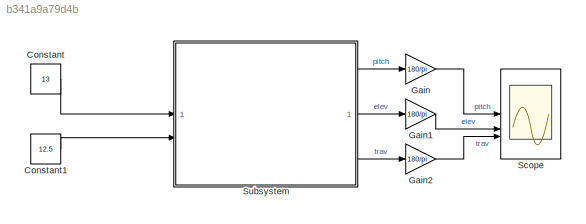
MODEL slx_b341a9a79d4b
KIND model
CONFIG AbsTol = auto
CONFIG EnableMultiTasking = off
CONFIG FixedStep = auto
CONFIG MaxStep = auto
CONFIG MinStep = auto
CONFIG RelTol = 1e-3
CONFIG SampleTimeConstraint = Unconstrained
CONFIG SolverName = VariableStepAuto
CONFIG StartTime = 0.0
CONFIG StopTime = 20
BLOCK [Constant] Constant
  Value = 13
BLOCK [Constant] Constant1
  Value = 12.5
BLOCK [Gain] Gain
  Gain = 180/pi
BLOCK [Gain] Gain1
  Gain = 180/pi
BLOCK [Gain] Gain2
  Gain = 180/pi
BLOCK [Scope] Scope
  Floating = off
  NumInputPorts = 3
  ScopeSpecificationString = Simulink.scopes.TimeScopeBlockCfg('CurrentConfiguration', extmgr.ConfigurationSet(extmgr.Configuration('Core','General UI',true),extmgr.Configuration('Core','Source UI',true),extmgr.Configuration('Sources','WiredSimulink',true),extmgr.Configuration('Visuals','Time Domain',true,'SerializedDisplays',{struct('MinYLimReal','-205.23262','MaxYLimReal','47.09357','YLabelReal','','MinYLimMag',' 0.00000','...<+1515ch>
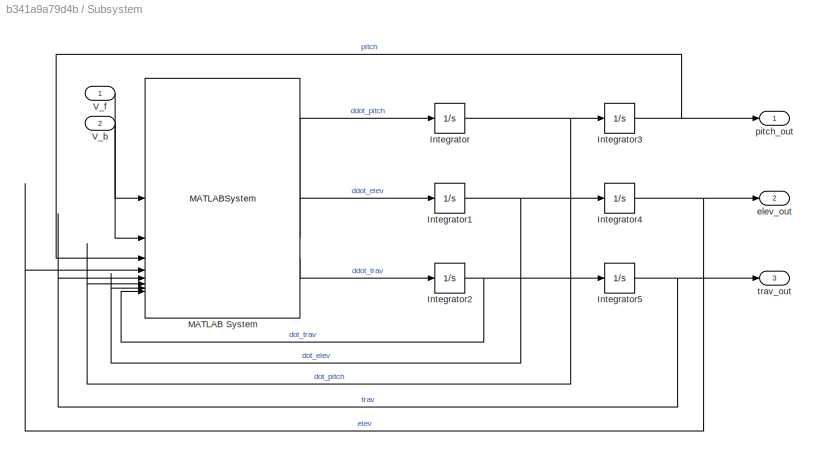
BLOCK [SubSystem] Subsystem
BLOCK [Integrator] Subsystem/Integrator
  InitialCondition = dot_pitch_0
BLOCK [Integrator] Subsystem/Integrator1
  InitialCondition = dot_elev_0
BLOCK [Integrator] Subsystem/Integrator2
  InitialCondition = dot_trav_0
BLOCK [Integrator] Subsystem/Integrator3
  InitialCondition = pitch_0
  LimitOutput = on
  LowerSaturationLimit = pitch_min
  UpperSaturationLimit = pitch_max
BLOCK [Integrator] Subsystem/Integrator4
  InitialCondition = elev_0
  LimitOutput = on
  LowerSaturationLimit = elev_min
  UpperSaturationLimit = elev_max
BLOCK [Integrator] Subsystem/Integrator5
  InitialCondition = trav_0
  LimitOutput = on
  LowerSaturationLimit = trav_min
  UpperSaturationLimit = trav_max
BLOCK [MATLABSystem] Subsystem/MATLAB System
  F_b = [ 0; 0; -1 ]
  F_f = [ 0; 0; -1 ]
  L_a = 25.75 * 0.0254
  L_h = 6.985 * 0.0254
  L_w = 18.125 * 0.0254
  MaskDisplay = disp('HeliSystem');\nport_label('input',1,'V_f');\nport_label('input',2,'V_b');\nport_label('input',3,'pitch');\nport_label('input',4,'elev');\nport_label('input',5,'trav');\nport_label('input',6,'dot_pitch');\nport_label('input',7,'dot_elev');\nport_label('input',8,'dot_trav');\nport_label('output',1,'ddot_pitch');\nport_label('output',2,'ddot_elev');\nport_label('output',3,'ddot_trav');
  MaskType = HeliSystem
  SimulateUsing = Code generation
  System = HeliSystem
  T_b = [ 0; 0; -1 ]
  T_coeff_elev = 0.1
  T_coeff_pitch = 0.1
  T_coeff_trav = 0.1
  T_f = [ 0; 0; 1 ]
  T_stat_elev = 0.001
  T_stat_pitch = 0.001
  T_stat_trav = 0.005
  V_max = 30
  a_thrust = 0.0053
  a_torque = 0.0003
  ax_elev = [ 0; 1; 0 ]
  ax_pitch = [ 1; 0; 0 ]
  ax_trav = [ 0; 0; 1 ]
  b_1 = 0.20
  b_2 = 0.238
  b_3 = 25.75 * 0.0254
  b_4 = 0.0513
  b_thrust = 0.0022
  b_torque = 0.0004
  g = 9.81
  m_b = 0.721
  m_f = 0.721
  m_w = 1.914
BLOCK [Inport] Subsystem/V_b
  Port = 2
BLOCK [Inport] Subsystem/V_f
BLOCK [Outport] Subsystem/elev_out
  Port = 2
BLOCK [Outport] Subsystem/pitch_out
BLOCK [Outport] Subsystem/trav_out
  Port = 3
LINE Constant1:1 -> Subsystem:2
LINE Constant:1 -> Subsystem:1
LINE Gain1:1 -> Scope:2
LINE Gain2:1 -> Scope:3
LINE Gain:1 -> Scope:1
NET Subsystem/Integrator1:1 -> Subsystem/Integrator4:1, Subsystem/MATLAB System:7
NET Subsystem/Integrator2:1 -> Subsystem/Integrator5:1, Subsystem/MATLAB System:8
NET Subsystem/Integrator3:1 -> Subsystem/MATLAB System:3, Subsystem/pitch_out:1
NET Subsystem/Integrator4:1 -> Subsystem/MATLAB System:4, Subsystem/elev_out:1
NET Subsystem/Integrator5:1 -> Subsystem/MATLAB System:5, Subsystem/trav_out:1
NET Subsystem/Integrator:1 -> Subsystem/Integrator3:1, Subsystem/MATLAB System:6
LINE Subsystem/MATLAB System:1 -> Subsystem/Integrator:1
LINE Subsystem/MATLAB System:2 -> Subsystem/Integrator1:1
LINE Subsystem/MATLAB System:3 -> Subsystem/Integrator2:1
LINE Subsystem/V_b:1 -> Subsystem/MATLAB System:2
LINE Subsystem/V_f:1 -> Subsystem/MATLAB System:1
LINE Subsystem:1 -> Gain:1
LINE Subsystem:2 -> Gain1:1
LINE Subsystem:3 -> Gain2:1
note: NET lines group one-source signal fan-out (src -> all destinations, sorted); 1:1 wires keep LINE
